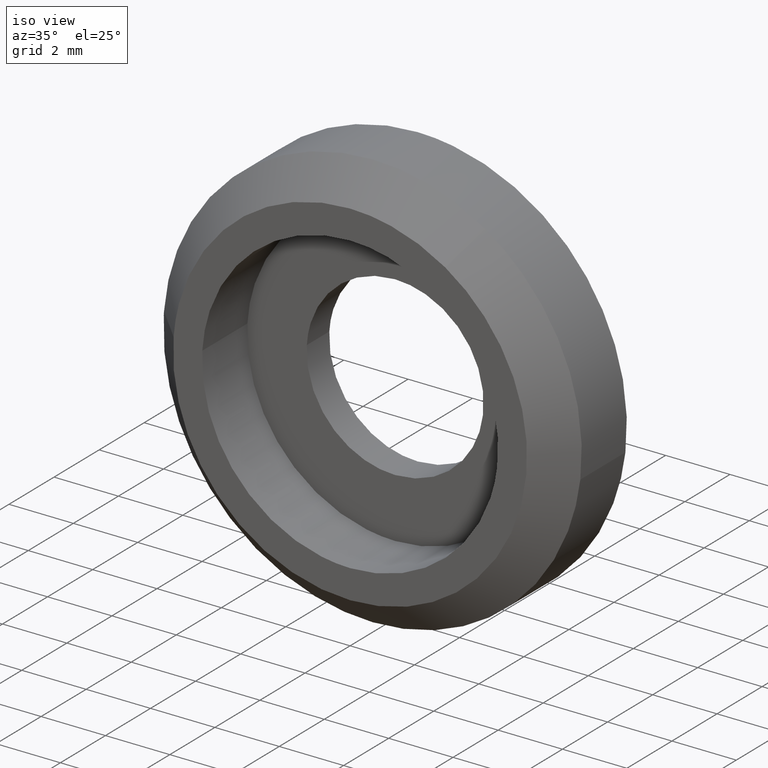
[diagram: clean part render]
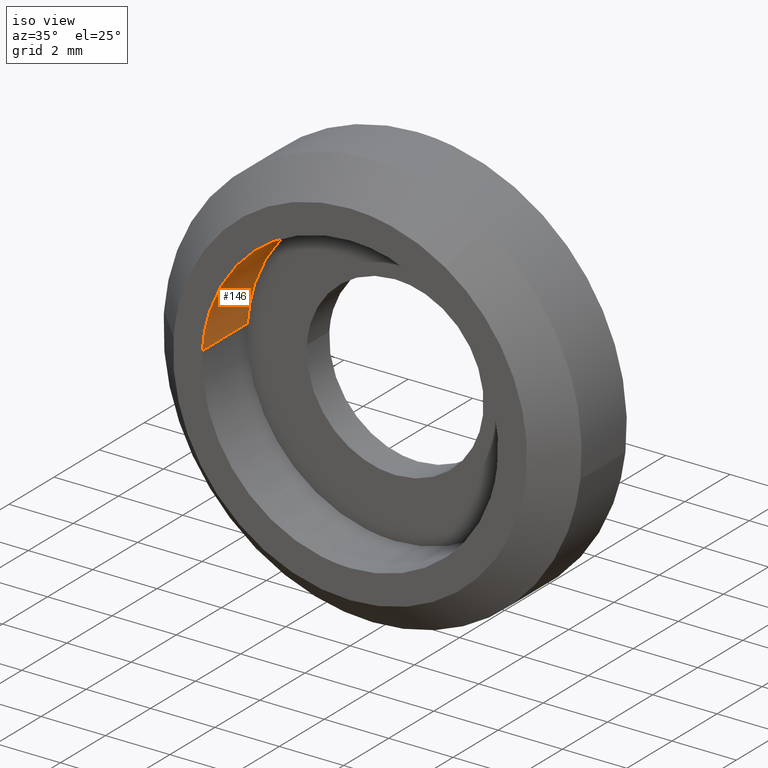
[diagram: same view with one face highlighted and labeled with its STEP entity id]
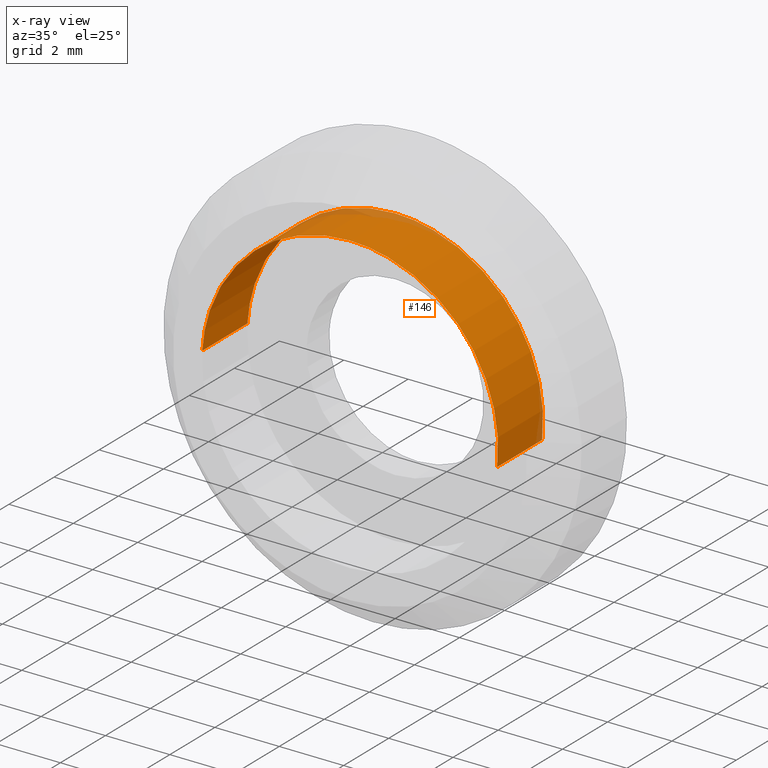
[diagram: x-ray of the same camera — body ghosted, the highlighted face saturated]
A machine part, iso view. The second image highlights one B-rep face of the part: STEP entity #146.
The next image is the same camera in x-ray: the body ghosted, the highlighted face saturated — about 5% of this face is hidden behind the body in this view.
In plain terms, the highlighted face is a freeform B-spline surface patch.
Its self-contained STEP definition (entity closure, byte-faithful):
#44=CARTESIAN_POINT('',(4.567843821272867,0.050000000000000,-0.542957479421089));
#45=CARTESIAN_POINT('',(4.583383031063587,0.050000000000000,-0.412227751734697));
#46=CARTESIAN_POINT('',(4.591420072740588,0.050000000000000,-0.280823281860342));
#47=CARTESIAN_POINT('',(4.872243354600929,0.050000000000000,4.310596790880246));
#48=CARTESIAN_POINT('',(0.280823281860343,0.050000000000000,4.591420072740587));
#49=CARTESIAN_POINT('',(-4.310596790880244,0.050000000000000,4.872243354600929));
#50=CARTESIAN_POINT('',(-4.591420072740586,0.050000000000000,0.280823281860342));
#51=CARTESIAN_POINT('',(4.567843821272867,-2.051250000000001,-0.542957479421089));
#52=CARTESIAN_POINT('',(4.583383031063587,-2.051250000000000,-0.412227751734697));
#53=CARTESIAN_POINT('',(4.591420072740588,-2.051250000000000,-0.280823281860342));
#54=CARTESIAN_POINT('',(4.872243354600929,-2.051250000000001,4.310596790880246));
#55=CARTESIAN_POINT('',(0.280823281860343,-2.051250000000000,4.591420072740587));
#56=CARTESIAN_POINT('',(-4.310596790880244,-2.051250000000001,4.872243354600929));
#57=CARTESIAN_POINT('',(-4.591420072740586,-2.051250000000000,0.280823281860342));
#65=(BOUNDED_SURFACE()B_SPLINE_SURFACE(2,1,((#44,#51),(#45,#52),(#46,#53),(#47,#54),(#48,#55),(#49,#56),(#50,#57)),.UNSPECIFIED.,.F.,.F.,.U.)B_SPLINE_SURFACE_WITH_KNOTS((3,2,2,3),(2,2),(0.0,0.304861181906598,7.926390729571546,15.547920277236489),(0.0,2.101250000000000),.UNSPECIFIED.)GEOMETRIC_REPRESENTATION_ITEM()RATIONAL_B_SPLINE_SURFACE(((0.977505800795127,0.977505800795127),(0.988284271247462,0.988284271247462),(1.0,1.0),(0.707106781186548,0.707106781186548),(1.0,1.0),(0.707106781186548,0.707106781186548),(1.0,1.0)))REPRESENTATION_ITEM('')SURFACE());
#66=CARTESIAN_POINT('',(4.567843924772339,-3.194357E-015,-0.542956608689565));
#67=VERTEX_POINT('',#66);
#68=CARTESIAN_POINT('',(4.898425E-016,0.0,4.600000000000000));
#69=VERTEX_POINT('',#68);
#70=CARTESIAN_POINT('',(4.567843924772339,-3.194357E-015,-0.542956608689565));
#71=CARTESIAN_POINT('',(4.600000000000001,0.0,-0.272430070462030));
#72=CARTESIAN_POINT('',(4.600000000000001,0.0,0.0));
#73=CARTESIAN_POINT('',(4.600000000000001,0.0,4.600000000000000));
#74=CARTESIAN_POINT('',(4.898425E-016,0.0,4.600000000000000));
#82=(BOUNDED_CURVE()B_SPLINE_CURVE(2,(#70,#71,#72,#73,#74),.UNSPECIFIED.,.F.,.U.)B_SPLINE_CURVE_WITH_KNOTS((3,2,3),(0.229562537947122,0.250000000000000,0.500000000000000),.UNSPECIFIED.)CURVE()GEOMETRIC_REPRESENTATION_ITEM()RATIONAL_B_SPLINE_CURVE((0.956026880476258,0.976056023819819,1.0,0.707106781186547,1.0))REPRESENTATION_ITEM(''));
#83=EDGE_CURVE('',#67,#69,#82,.T.);
#84=ORIENTED_EDGE('',*,*,#83,.F.);
#85=CARTESIAN_POINT('',(4.567843923526642,-2.0,-0.542956619169509));
#86=VERTEX_POINT('',#85);
#87=CARTESIAN_POINT('',(4.567843924772339,-3.194357E-015,-0.542956608689565));
#88=CARTESIAN_POINT('',(4.567843923526642,-2.0,-0.542956619169509));
#89=QUASI_UNIFORM_CURVE('',1,(#87,#88),.UNSPECIFIED.,.F.,.U.);
#90=EDGE_CURVE('',#67,#86,#89,.T.);
#91=ORIENTED_EDGE('',*,*,#90,.T.);
#92=CARTESIAN_POINT('',(4.898425E-016,-2.0,4.600000000000000));
#93=VERTEX_POINT('',#92);
#94=CARTESIAN_POINT('',(4.567843923526642,-2.000000000000000,-0.542956619169509));
#95=CARTESIAN_POINT('',(4.600000000000000,-2.000000000000000,-0.272430081052766));
#96=CARTESIAN_POINT('',(4.600000000000001,-2.0,0.0));
#97=CARTESIAN_POINT('',(4.600000000000001,-2.0,4.600000000000000));
#98=CARTESIAN_POINT('',(4.898425E-016,-2.0,4.600000000000000));
#106=(BOUNDED_CURVE()B_SPLINE_CURVE(2,(#94,#95,#96,#97,#98),.UNSPECIFIED.,.F.,.U.)B_SPLINE_CURVE_WITH_KNOTS((3,2,3),(0.229562537171638,0.250000000000000,0.500000000000000),.UNSPECIFIED.)CURVE()GEOMETRIC_REPRESENTATION_ITEM()RATIONAL_B_SPLINE_CURVE((0.956026878956277,0.976056022911283,1.0,0.707106781186547,1.0))REPRESENTATION_ITEM(''));
#107=EDGE_CURVE('',#86,#93,#106,.T.);
#108=ORIENTED_EDGE('',*,*,#107,.T.);
#109=CARTESIAN_POINT('',(-4.591420351980636,-2.0,0.280818716251385));
#110=VERTEX_POINT('',#109);
#111=CARTESIAN_POINT('',(4.898425E-016,-2.0,4.600000000000000));
#112=CARTESIAN_POINT('',(-4.327252218730626,-2.0,4.600000000000000));
#113=CARTESIAN_POINT('',(-4.591420351980636,-2.000000000000000,0.280818716251385));
#121=(BOUNDED_CURVE()B_SPLINE_CURVE(2,(#111,#112,#113),.UNSPECIFIED.,.F.,.U.)B_SPLINE_CURVE_WITH_KNOTS((3,3),(0.500000000000000,0.739333133818792),.UNSPECIFIED.)CURVE()GEOMETRIC_REPRESENTATION_ITEM()RATIONAL_B_SPLINE_CURVE((1.0,0.719603792268414,0.976072409395271))REPRESENTATION_ITEM(''));
#122=EDGE_CURVE('',#93,#110,#121,.T.);
#123=ORIENTED_EDGE('',*,*,#122,.T.);
#124=CARTESIAN_POINT('',(-4.591420355385287,-1.392636E-014,0.280818660584011));
#125=VERTEX_POINT('',#124);
#126=CARTESIAN_POINT('',(-4.591420355385287,-1.392636E-014,0.280818660584011));
#127=CARTESIAN_POINT('',(-4.591420351980636,-2.0,0.280818716251385));
#128=QUASI_UNIFORM_CURVE('',1,(#126,#127),.UNSPECIFIED.,.F.,.U.);
#129=EDGE_CURVE('',#125,#110,#128,.T.);
#130=ORIENTED_EDGE('',*,*,#129,.F.);
#131=CARTESIAN_POINT('',(4.898425E-016,0.0,4.600000000000000));
#132=CARTESIAN_POINT('',(-4.327252271293201,0.0,4.599999999999999));
#133=CARTESIAN_POINT('',(-4.591420355385287,-1.392636E-014,0.280818660584011));
#141=(BOUNDED_CURVE()B_SPLINE_CURVE(2,(#131,#132,#133),.UNSPECIFIED.,.F.,.U.)B_SPLINE_CURVE_WITH_KNOTS((3,3),(0.500000000000000,0.739333135910787),.UNSPECIFIED.)CURVE()GEOMETRIC_REPRESENTATION_ITEM()RATIONAL_B_SPLINE_CURVE((1.0,0.719603789817489,0.976072413878821))REPRESENTATION_ITEM(''));
#142=EDGE_CURVE('',#69,#125,#141,.T.);
#143=ORIENTED_EDGE('',*,*,#142,.F.);
#144=EDGE_LOOP('',(#84,#91,#108,#123,#130,#143));
#145=FACE_OUTER_BOUND('',#144,.T.);
#146=ADVANCED_FACE('',(#145),#65,.F.);